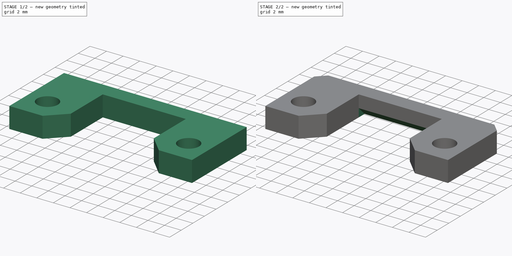
[diagram: build sequence overview — one tinted view per stage of 2, left to right]
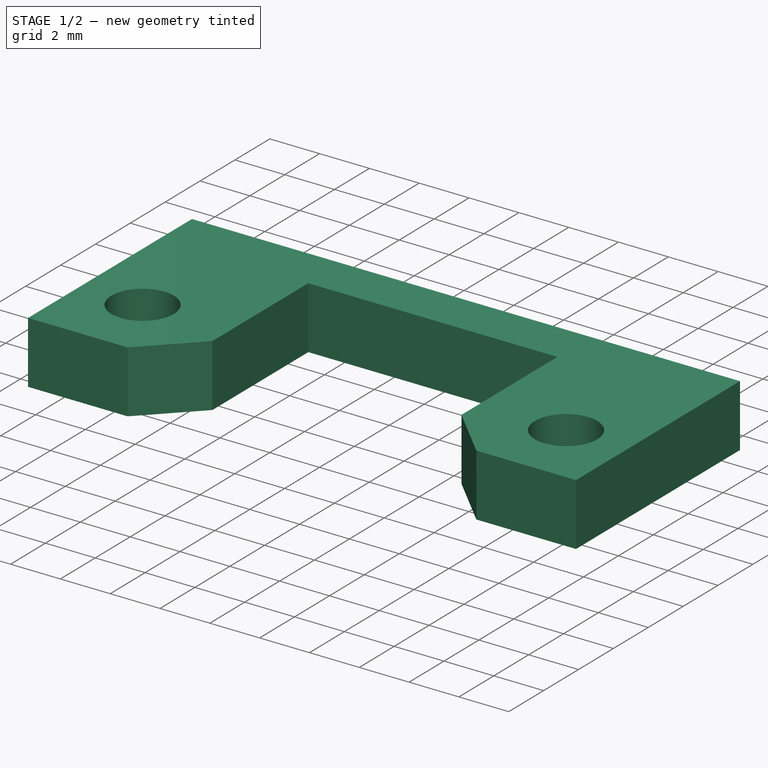
[diagram: stage 1 of 2 — iso view after this stage's code; geometry added in this stage tinted green]
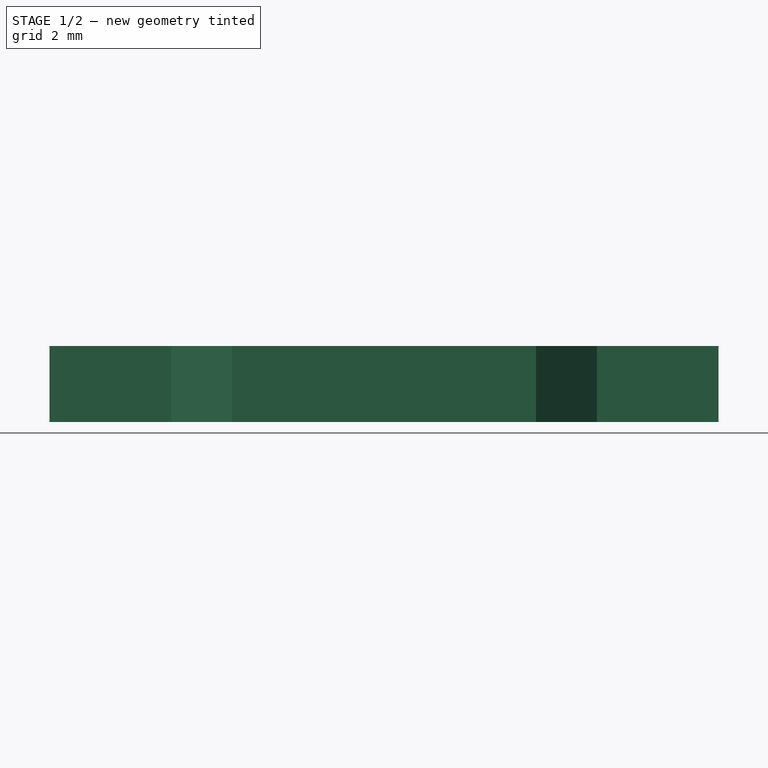
[diagram: stage 1 of 2 — front view after this stage's code; geometry added in this stage tinted green]
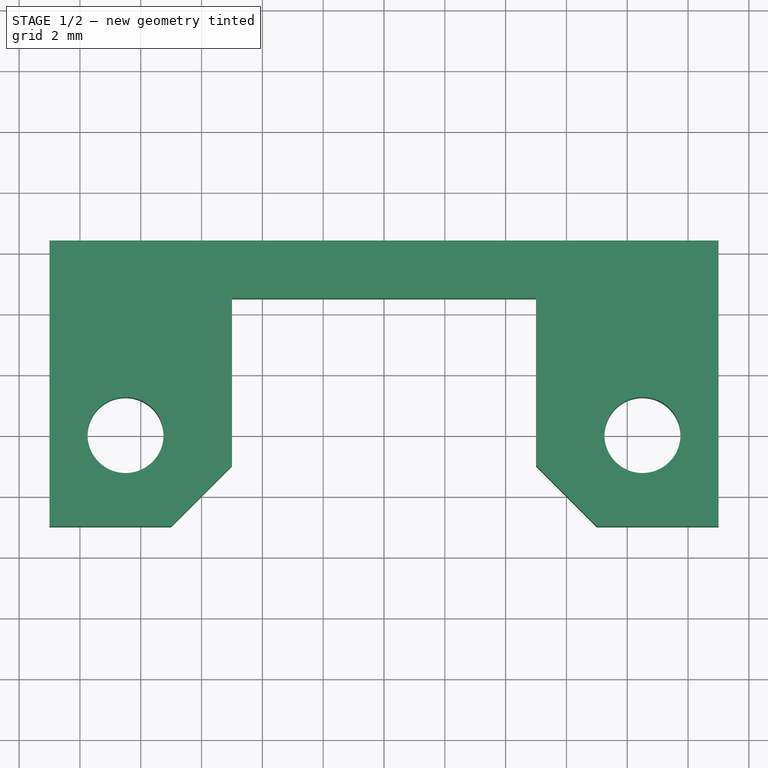
[diagram: stage 1 of 2 — top view after this stage's code; geometry added in this stage tinted green]
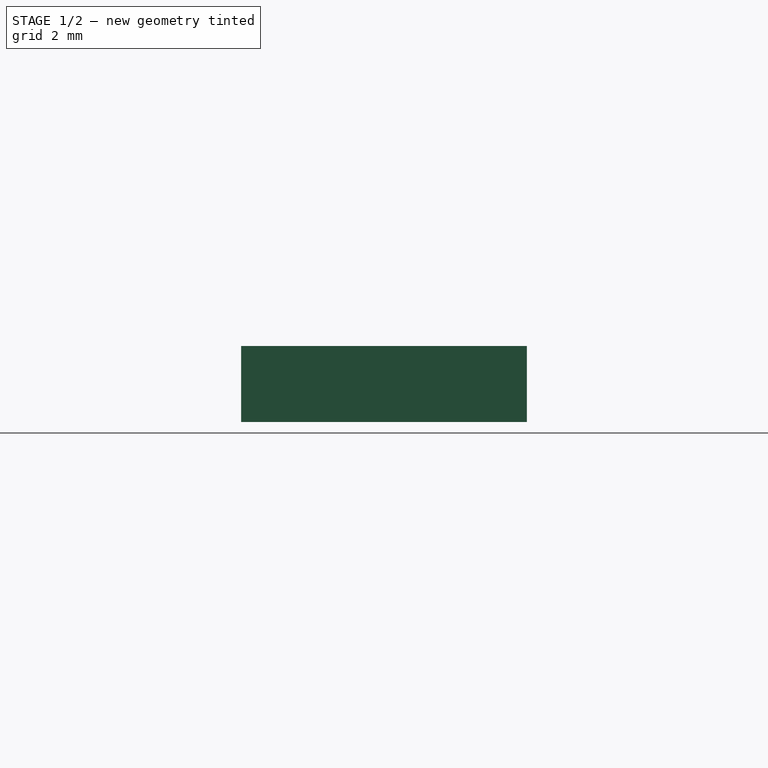
[diagram: stage 1 of 2 — right view after this stage's code; geometry added in this stage tinted green]
FCSTD DOCUMENT  (FreeCAD 1.0R38641 +468 (Git))
Label: k1_toolhead_microprobe_spacer
License: All rights reserved
LicenseURL: https://en.wikipedia.org/wiki/All_rights_reserved
objects: PartDesign::Chamfer×3, Part::Feature×1, Sketcher::SketchObject×1, PartDesign::Pad×1, PartDesign::Body×1, App::Part×1
note: 16 computed .brp shape members not serialized (recipe doc carries the construction recipe); baked Part::Feature solids carry a one-line shape summary decoded from their .brp

FEATURE [Part::Feature] Part__Feature  label="BIQU microprobe mockup"
  Placement = pos=(9.5,-38,-21.4) rot=(-0.57735,0.57735,0.57735;4.18879rad)
  shape: bbox 21.93 x 15.6 x 29.26 mm, 161 faces (baked)
FEATURE [Sketcher::SketchObject] Sketch
  ArcFitTolerance = 1e-06
  AttachmentSupport = -> [XY_Plane]
  FullyConstrained = true
  MakeInternals = false
  MapMode = 5
  sketch-geometry (10):
    g0: Circle CenterX=-8.5 CenterY=0 CenterZ=0 NormalX=0 NormalY=0 NormalZ=1 AngleXU=0 Radius=1.25
    g1: Circle CenterX=8.5 CenterY=0 CenterZ=0 NormalX=0 NormalY=0 NormalZ=1 AngleXU=0 Radius=1.25
    g2: LineSegment StartX=-11 StartY=6.4 StartZ=0 EndX=11 EndY=6.4 EndZ=0
    g3: LineSegment StartX=11 StartY=6.4 StartZ=0 EndX=11 EndY=-3 EndZ=0
    g4: LineSegment StartX=11 StartY=-3 StartZ=0 EndX=5 EndY=-3 EndZ=0
    g5: LineSegment StartX=5 StartY=-3 StartZ=0 EndX=5 EndY=4.5 EndZ=0
    g6: LineSegment StartX=5 StartY=4.5 StartZ=0 EndX=-5 EndY=4.5 EndZ=0
    g7: LineSegment StartX=-5 StartY=4.5 StartZ=0 EndX=-5 EndY=-3 EndZ=0
    g8: LineSegment StartX=-5 StartY=-3 StartZ=0 EndX=-11 EndY=-3 EndZ=0
    g9: LineSegment StartX=-11 StartY=-3 StartZ=0 EndX=-11 EndY=6.4 EndZ=0
  constraints (28):
    c: PointOnObject(g0,g-1)
    c: Symmetric(g1,g0,g-2)
    c: Equal(g1,g0)
    c: Diameter(g0) = 2.5
    c: Distance(g1,g0) = 17
    c: Coincident(g3,g2)
    c: Vertical(g3)
    c: Coincident(g4,g3)
    c: Horizontal(g4)
    c: Coincident(g5,g4)
    c: Vertical(g5)
    c: Coincident(g6,g5)
    c: Horizontal(g6)
    c: Coincident(g7,g6)
    c: Vertical(g7)
    c: Coincident(g8,g7)
    c: Horizontal(g8)
    c: Coincident(g9,g8)
    c: Coincident(g9,g2)
    c: Vertical(g9)
    c: Equal(g9,g3)
    c: Equal(g4,g8)
    c: Symmetric(g2,g2,g-2)
    c: Distance(g2,g2) = 22
    c: Distance(g2,g-1) = 6.4
    c: Distance(g8,g-1) = 3
    c: Distance(g6,g6) = 10
    c: Distance(g6,g-1) = 4.5
FEATURE [PartDesign::Pad] Pad
  Direction = (0,0,1)
  Length = 2.5
  Length2 = 10
  Profile = -> Sketch
  ReferenceAxis = -> Sketch [N_Axis]
  Refine = true
  Suppressed = false
  Type = 0
FEATURE [PartDesign::Chamfer] Chamfer
  Angle = 45
  Base = -> Pad [Edge17,Edge8]
  BaseFeature = -> Pad
  ChamferType = 0
  FlipDirection = false
  Refine = true
  Size = 2
  Size2 = 1
  SupportTransform = false
  Suppressed = false
  UseAllEdges = false
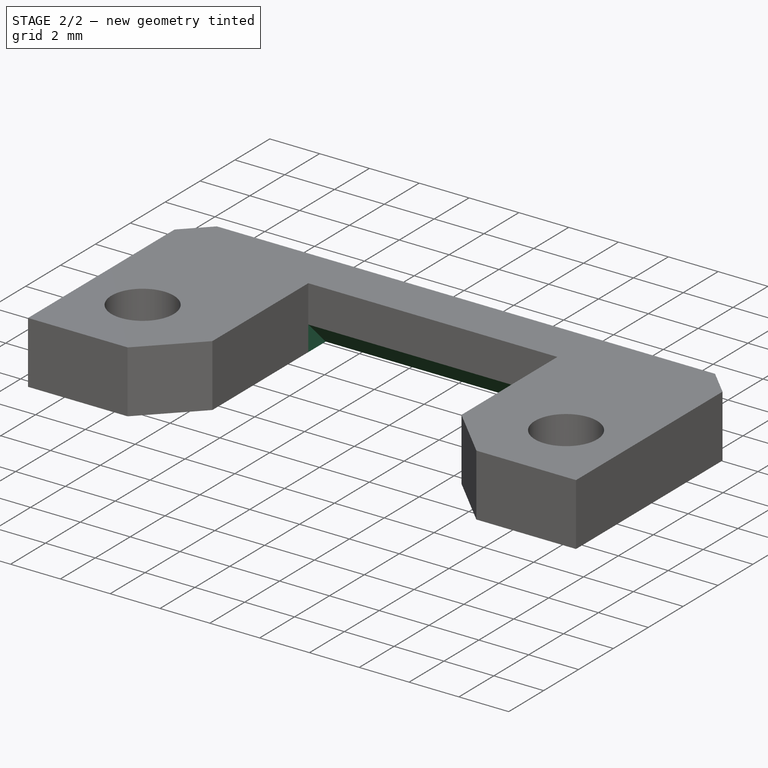
[diagram: stage 2 of 2 — iso view after this stage's code; geometry added in this stage tinted green]
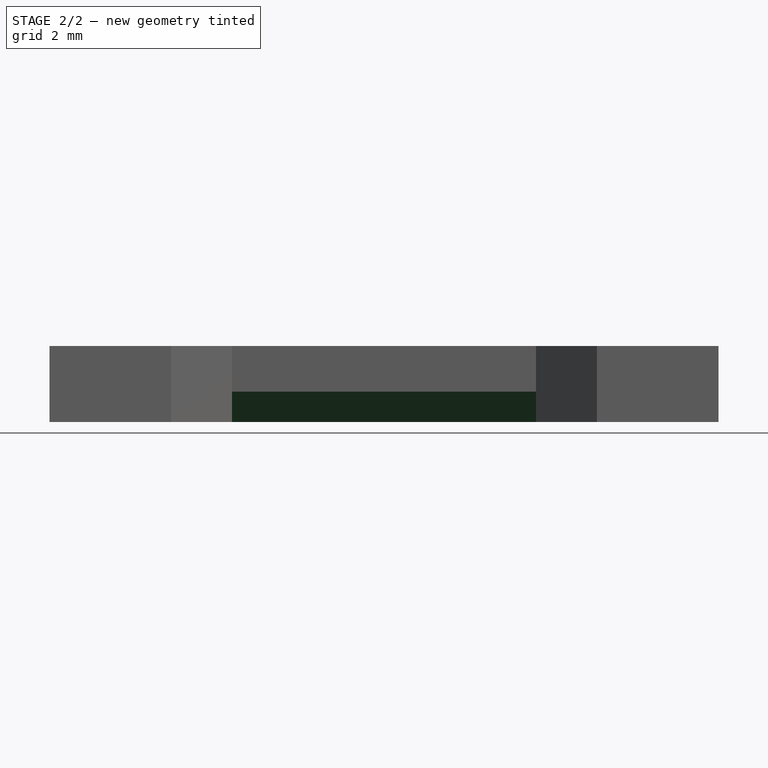
[diagram: stage 2 of 2 — front view after this stage's code; geometry added in this stage tinted green]
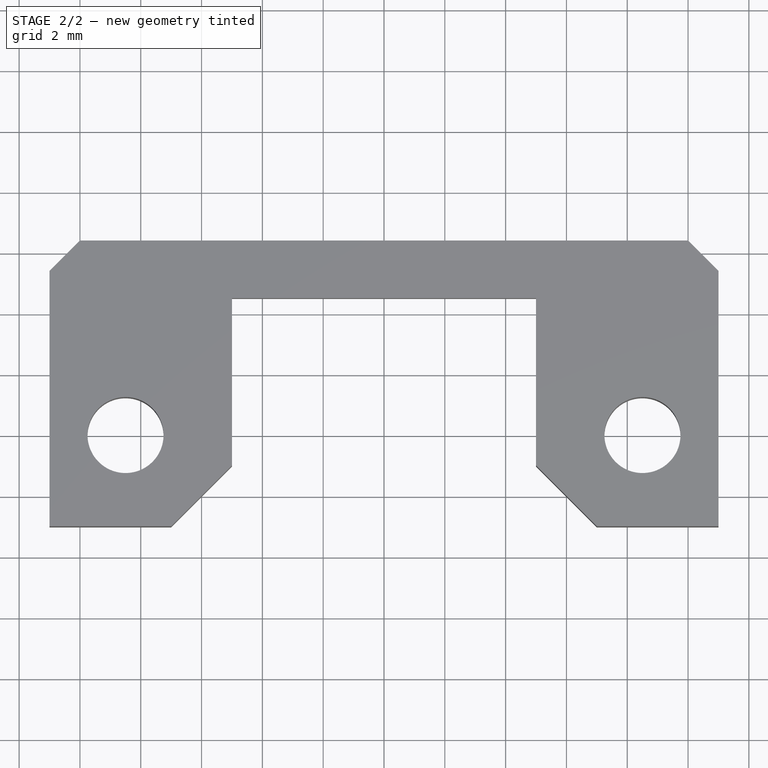
[diagram: stage 2 of 2 — top view after this stage's code; geometry added in this stage tinted green]
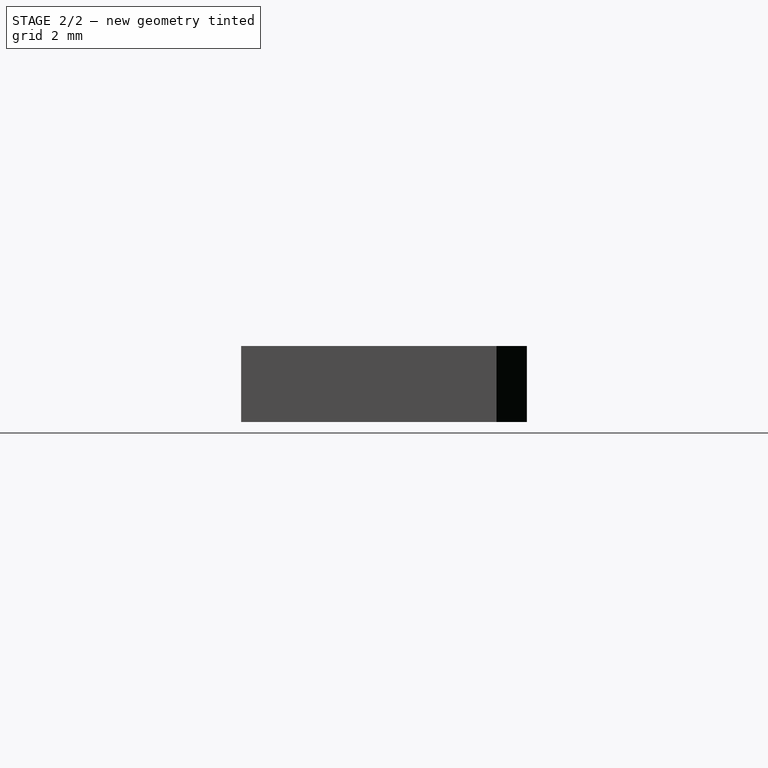
[diagram: stage 2 of 2 — right view after this stage's code; geometry added in this stage tinted green]
FEATURE [PartDesign::Chamfer] Chamfer001
  Angle = 45
  Base = -> Chamfer [Edge9]
  BaseFeature = -> Chamfer
  ChamferType = 0
  FlipDirection = false
  Refine = true
  Size = 1
  Size2 = 1
  SupportTransform = false
  Suppressed = false
  UseAllEdges = false
FEATURE [PartDesign::Chamfer] Chamfer002
  Angle = 45
  Base = -> Chamfer001 [Edge32,Edge28]
  BaseFeature = -> Chamfer001
  ChamferType = 0
  FlipDirection = false
  Refine = true
  Size = 1
  Size2 = 1
  SupportTransform = false
  Suppressed = false
  UseAllEdges = false
FEATURE [PartDesign::Body] Body  label="k1_toolhead_microprobe_spacer"
  AllowCompound = false
  Group = -> [Sketch,Pad,Chamfer,Chamfer001,Chamfer002]
  Origin = -> Origin
  Tip = -> Chamfer002
FEATURE [App::Part] Part  label="k1_toolhead_microprobe_spacer_part"
  Group = -> [Body]
  Origin = -> Origin001
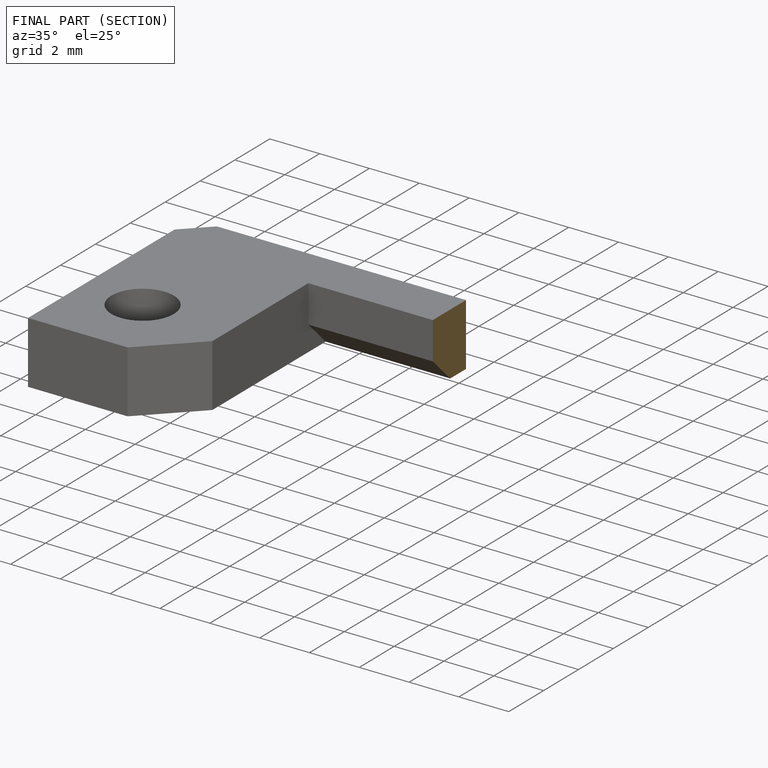
[diagram: finished part — half-section view (interior)]
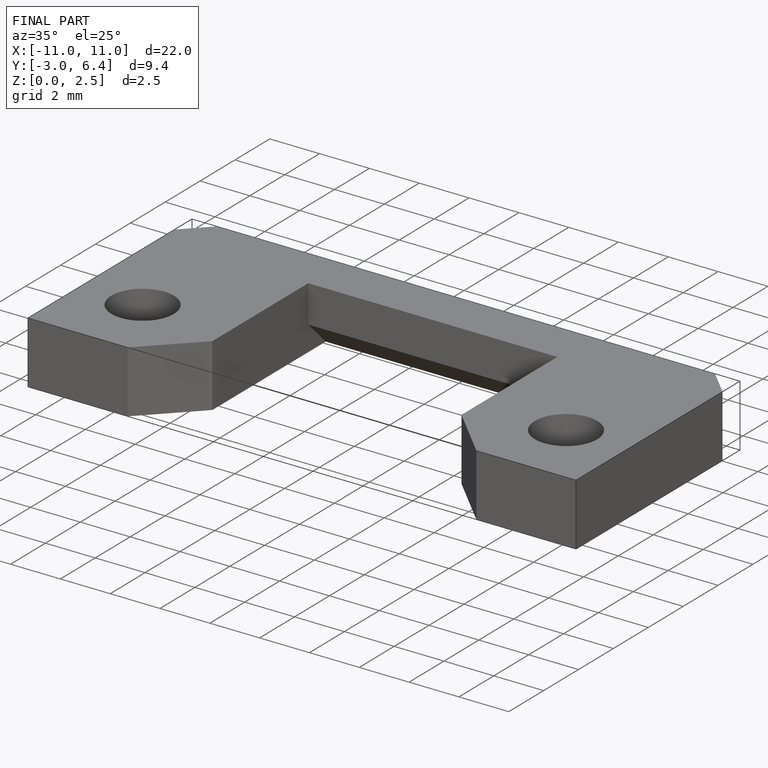
[diagram: finished part — iso view with bounding-box wireframe]
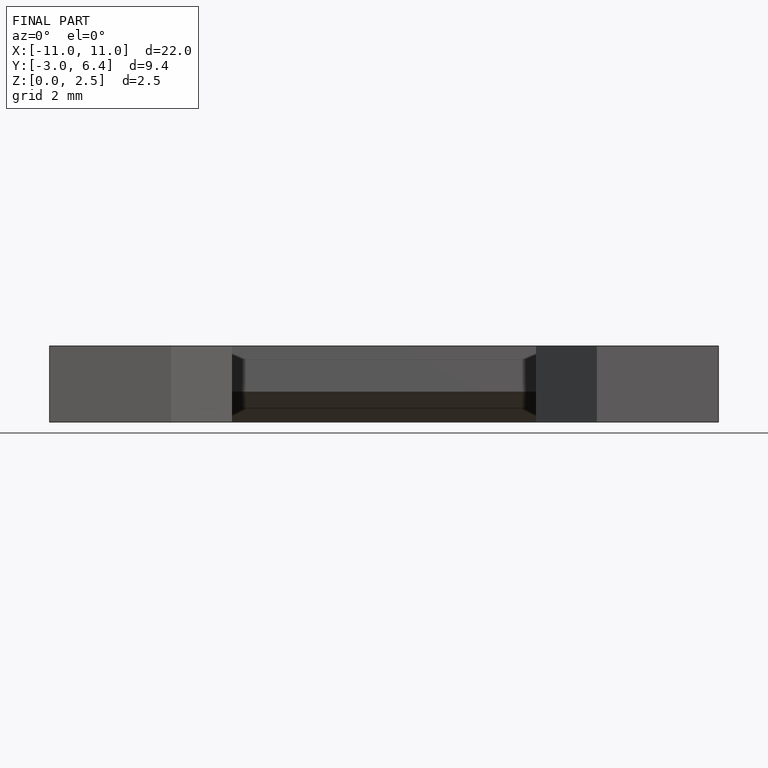
[diagram: finished part — front view with bounding-box wireframe]
